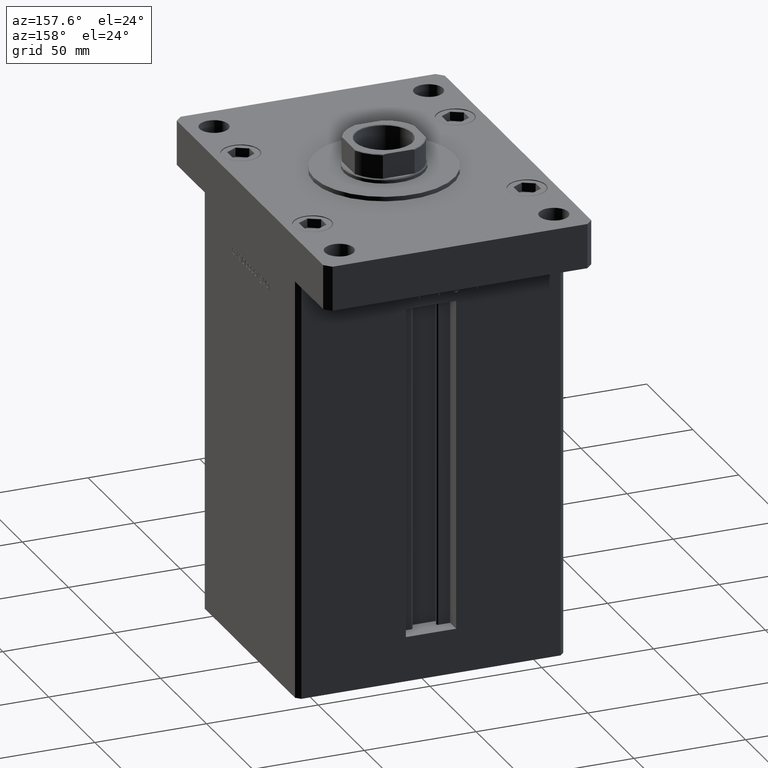
[diagram: clean part render]
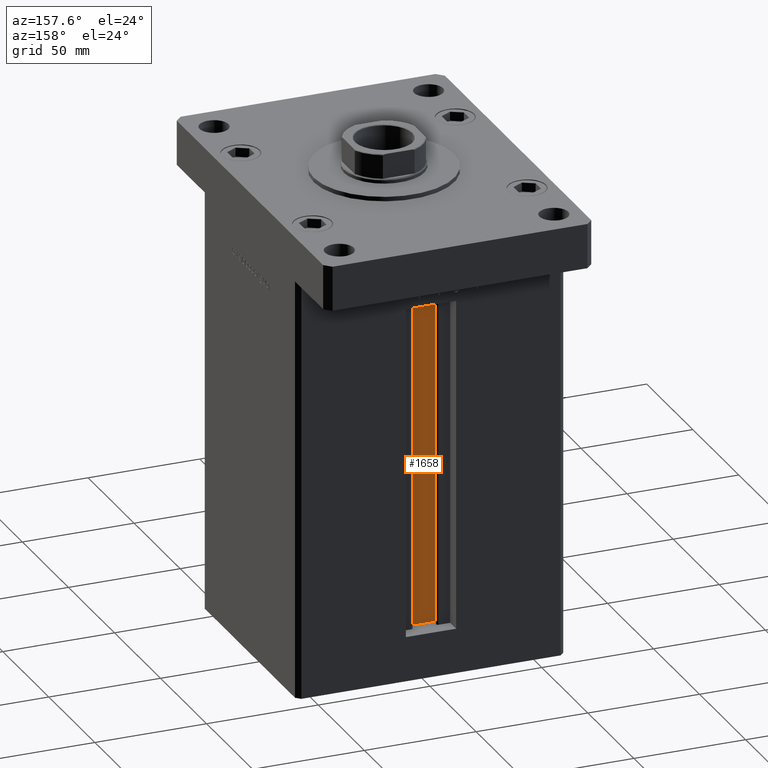
[diagram: same view with one face highlighted and labeled with its STEP entity id]
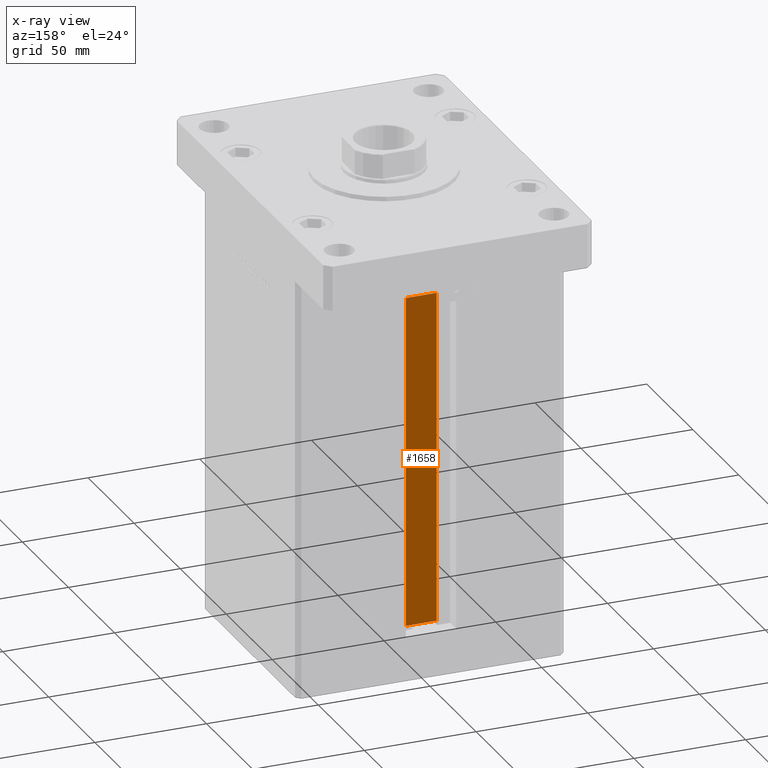
[diagram: x-ray of the same camera — body ghosted, the highlighted face saturated]
A machine part, auxiliary view. The second image highlights one B-rep face of the part: STEP entity #1658.
The next image is the same camera in x-ray: the body ghosted, the highlighted face saturated — about 0% of this face is hidden behind the body in this view.
In plain terms, the highlighted planar face has unit normal (0, -1, 0).
Its self-contained STEP definition (entity closure, byte-faithful):
#790 = CARTESIAN_POINT ( 'NONE',  ( -6.876153656360466826, 40.49999999999987210, 0.000000000000000000 ) ) ;
#1379 = CARTESIAN_POINT ( 'NONE',  ( 6.876153656360466826, 40.49999999999987210, 148.5000000000000000 ) ) ;
#1658 = ADVANCED_FACE ( 'NONE', ( #39321 ), #5789, .F. ) ;
#2018 = CARTESIAN_POINT ( 'NONE',  ( 6.876153656360466826, 40.49999999999987210, 0.000000000000000000 ) ) ;
#3815 = DIRECTION ( 'NONE',  ( -0.000000000000000000, -0.000000000000000000, 1.000000000000000000 ) ) ;
#4064 = VECTOR ( 'NONE', #20309, 1000.000000000000000 ) ;
#5789 = PLANE ( 'NONE',  #12506 ) ;
#6583 = VERTEX_POINT ( 'NONE', #790 ) ;
#7376 = VERTEX_POINT ( 'NONE', #28987 ) ;
#7715 = VECTOR ( 'NONE', #40142, 1000.000000000000000 ) ;
#10511 = ORIENTED_EDGE ( 'NONE', *, *, #27527, .F. ) ;
#12506 = AXIS2_PLACEMENT_3D ( 'NONE', #43411, #22393, #14514 ) ;
#14514 = DIRECTION ( 'NONE',  ( 0.000000000000000000, 0.000000000000000000, -1.000000000000000000 ) ) ;
#16232 = LINE ( 'NONE', #16786, #4064 ) ;
#16786 = CARTESIAN_POINT ( 'NONE',  ( 6.876153656360466826, 40.49999999999987210, 0.000000000000000000 ) ) ;
#18769 = EDGE_CURVE ( 'NONE', #22774, #37205, #19443, .T. ) ;
#18865 = LINE ( 'NONE', #44498, #7715 ) ;
#19443 = LINE ( 'NONE', #2018, #30890 ) ;
#19878 = LINE ( 'NONE', #53154, #38004 ) ;
#20309 = DIRECTION ( 'NONE',  ( 1.000000000000000000, -0.000000000000000000, -0.000000000000000000 ) ) ;
#21894 = EDGE_CURVE ( 'NONE', #6583, #22774, #16232, .T. ) ;
#22393 = DIRECTION ( 'NONE',  ( 0.000000000000000000, -1.000000000000000000, -0.000000000000000000 ) ) ;
#22774 = VERTEX_POINT ( 'NONE', #45702 ) ;
#27527 = EDGE_CURVE ( 'NONE', #37205, #7376, #18865, .T. ) ;
#28987 = CARTESIAN_POINT ( 'NONE',  ( -6.876153656360466826, 40.49999999999987210, 148.5000000000000000 ) ) ;
#30890 = VECTOR ( 'NONE', #48093, 1000.000000000000000 ) ;
#37205 = VERTEX_POINT ( 'NONE', #1379 ) ;
#38004 = VECTOR ( 'NONE', #3815, 1000.000000000000000 ) ;
#39133 = EDGE_LOOP ( 'NONE', ( #40292, #52825, #45460, #10511 ) ) ;
#39321 = FACE_OUTER_BOUND ( 'NONE', #39133, .T. ) ;
#40142 = DIRECTION ( 'NONE',  ( -1.000000000000000000, 0.000000000000000000, 0.000000000000000000 ) ) ;
#40292 = ORIENTED_EDGE ( 'NONE', *, *, #18769, .F. ) ;
#41363 = EDGE_CURVE ( 'NONE', #6583, #7376, #19878, .T. ) ;
#43411 = CARTESIAN_POINT ( 'NONE',  ( 6.876153656360466826, 40.49999999999987210, 0.000000000000000000 ) ) ;
#44498 = CARTESIAN_POINT ( 'NONE',  ( 0.000000000000000000, 40.49999999999987210, 148.5000000000000000 ) ) ;
#45460 = ORIENTED_EDGE ( 'NONE', *, *, #41363, .T. ) ;
#45702 = CARTESIAN_POINT ( 'NONE',  ( 6.876153656360466826, 40.49999999999987210, 0.000000000000000000 ) ) ;
#48093 = DIRECTION ( 'NONE',  ( -0.000000000000000000, -0.000000000000000000, 1.000000000000000000 ) ) ;
#52825 = ORIENTED_EDGE ( 'NONE', *, *, #21894, .F. ) ;
#53154 = CARTESIAN_POINT ( 'NONE',  ( -6.876153656360466826, 40.49999999999987210, 0.000000000000000000 ) ) ;